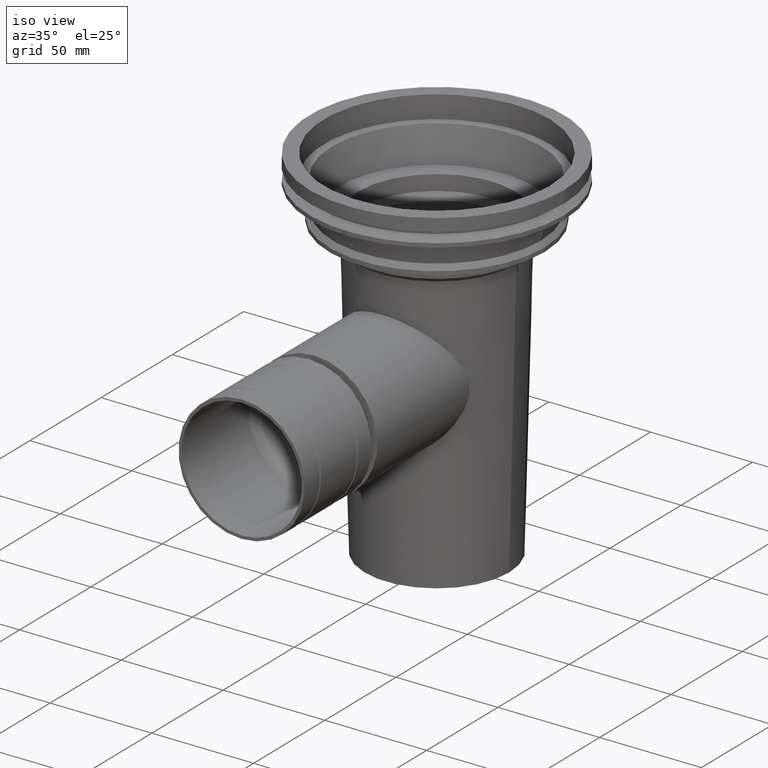
[diagram: clean part render]
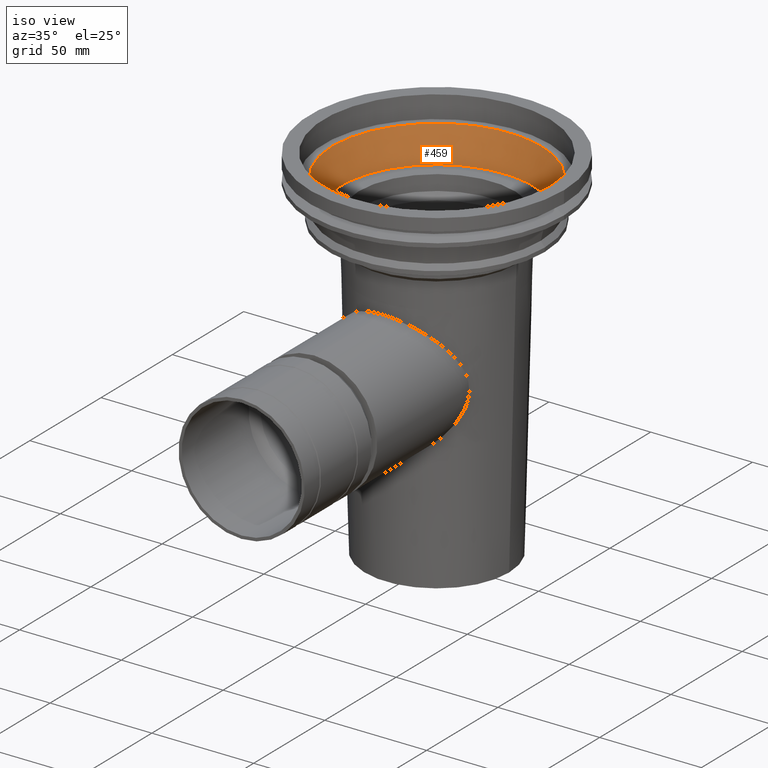
[diagram: same view with one face highlighted and labeled with its STEP entity id]
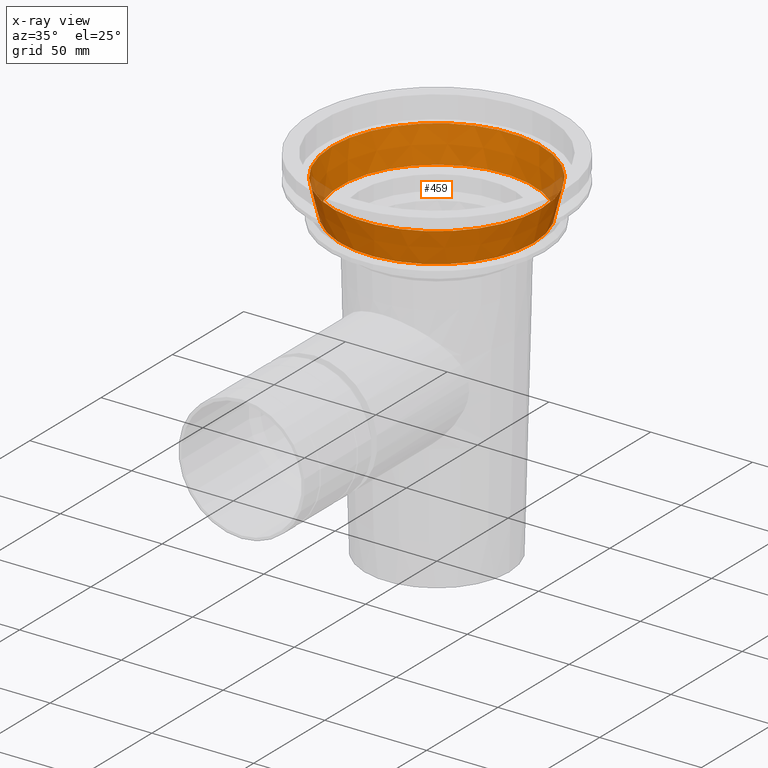
[diagram: x-ray of the same camera — body ghosted, the highlighted face saturated]
A machine part, iso view. The second image highlights one B-rep face of the part: STEP entity #459.
The next image is the same camera in x-ray: the body ghosted, the highlighted face saturated — about 3% of this face is hidden behind the body in this view.
In plain terms, the highlighted conical surface has half-angle 13.609 deg.
Its self-contained STEP definition (entity closure, byte-faithful):
#33=CONICAL_SURFACE('',#527,47.4999181723626,0.237521857903909);
#70=ORIENTED_EDGE('',*,*,#149,.T.);
#71=ORIENTED_EDGE('',*,*,#148,.F.);
#148=EDGE_CURVE('',#191,#191,#232,.T.);
#149=EDGE_CURVE('',#192,#192,#233,.T.);
#191=VERTEX_POINT('',#896);
#192=VERTEX_POINT('',#899);
#232=CIRCLE('',#526,47.4999181723626);
#233=CIRCLE('',#528,51.5);
#283=EDGE_LOOP('',(#70));
#284=EDGE_LOOP('',(#71));
#369=FACE_BOUND('',#283,.T.);
#370=FACE_BOUND('',#284,.T.);
#459=ADVANCED_FACE('',(#369,#370),#33,.F.);
#526=AXIS2_PLACEMENT_3D('',#895,#633,#634);
#527=AXIS2_PLACEMENT_3D('',#897,#635,#636);
#528=AXIS2_PLACEMENT_3D('',#898,#637,#638);
#633=DIRECTION('',(0.,0.,1.));
#634=DIRECTION('',(1.,0.,0.));
#635=DIRECTION('',(0.,0.,1.));
#636=DIRECTION('',(1.,0.,0.));
#637=DIRECTION('',(0.,0.,1.));
#638=DIRECTION('',(1.,0.,0.));
#895=CARTESIAN_POINT('',(0.,0.,-27.523));
#896=CARTESIAN_POINT('',(47.4999181723626,0.,-27.523));
#897=CARTESIAN_POINT('',(0.,0.,-27.523));
#898=CARTESIAN_POINT('',(0.,0.,-11.));
#899=CARTESIAN_POINT('',(51.5,0.,-11.));